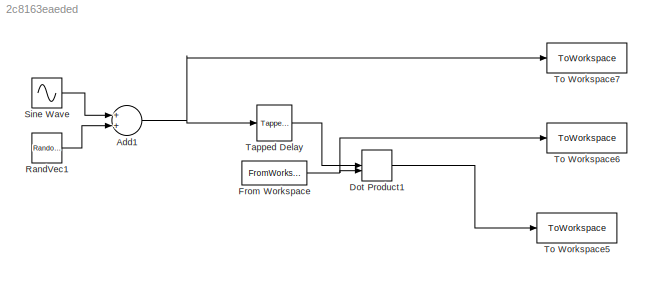
MODEL slx_2c8163eaeded
KIND model
CONFIG AbsTol = auto
CONFIG FixedStep = auto
CONFIG MaxStep = auto
CONFIG MinStep = auto
CONFIG RelTol = 1e-3
CONFIG SampleTimeConstraint = Unconstrained
CONFIG Solver = ode45
CONFIG SolverMode = Auto
CONFIG SolverName = ode45
CONFIG StartTime = 0.0
CONFIG StopTime = 10.0
BLOCK [Sum] Add1
  InputSameDT = off
  OutDataTypeStr = Inherit: Inherit via internal rule
  Ports = [2, 1]
  SaturateOnIntegerOverflow = off
BLOCK [DotProduct] Dot Product1
  OutDataTypeStr = Inherit: Inherit via internal rule
BLOCK [FromWorkspace] From Workspace
  SampleTime = tSamp
  VariableName = STA
  ZeroCross = on
BLOCK [RandomNumber] RandVec1
  SampleTime = tSamp
  Variance = 0.1
BLOCK [Sin] Sine Wave
  Frequency = 6
  Ports = [0, 1]
  SampleTime = tSamp
BLOCK [Reference] Tapped Delay  REF=simulink/Discrete/Tapped Delay
  DelayOrder = Oldest
  NumDelays = 40
  Ports = [1, 1]
  SourceBlock = simulink/Discrete/Tapped Delay
  SourceType = Tapped Delay Line
  includeCurrent = off
  samptime = -1
  vinit = 0.0
BLOCK [ToWorkspace] To Workspace5
  FixptAsFi = on
  MaxDataPoints = inf
  Ports = [1]
  SampleTime = -1
  Save2DSignal = 3-D array (concatenate along third dimension)
  SaveFormat = Structure With Time
  VariableName = signal1
BLOCK [ToWorkspace] To Workspace6
  FixptAsFi = on
  MaxDataPoints = inf
  Ports = [1]
  SampleTime = -1
  Save2DSignal = 3-D array (concatenate along third dimension)
  SaveFormat = Structure With Time
  VariableName = filter
BLOCK [ToWorkspace] To Workspace7
  FixptAsFi = on
  MaxDataPoints = inf
  Ports = [1]
  SampleTime = -1
  Save2DSignal = 3-D array (concatenate along third dimension)
  SaveFormat = Structure With Time
  VariableName = signal2
NET Add1:1 -> Tapped Delay:1, To Workspace7:1
LINE Dot Product1:1 -> To Workspace5:1
NET From Workspace:1 -> Dot Product1:2, To Workspace6:1
LINE RandVec1:1 -> Add1:2
LINE Sine Wave:1 -> Add1:1
LINE Tapped Delay:1 -> Dot Product1:1
note: NET lines group one-source signal fan-out (src -> all destinations, sorted); 1:1 wires keep LINE
